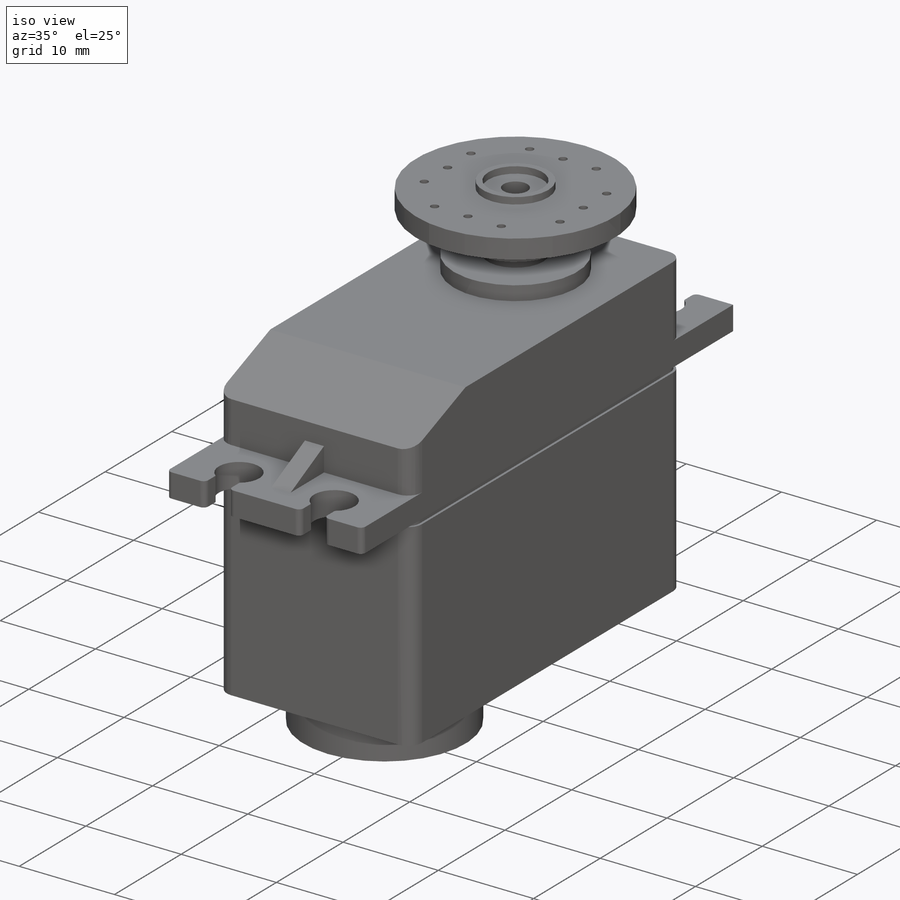
[diagram: iso view]
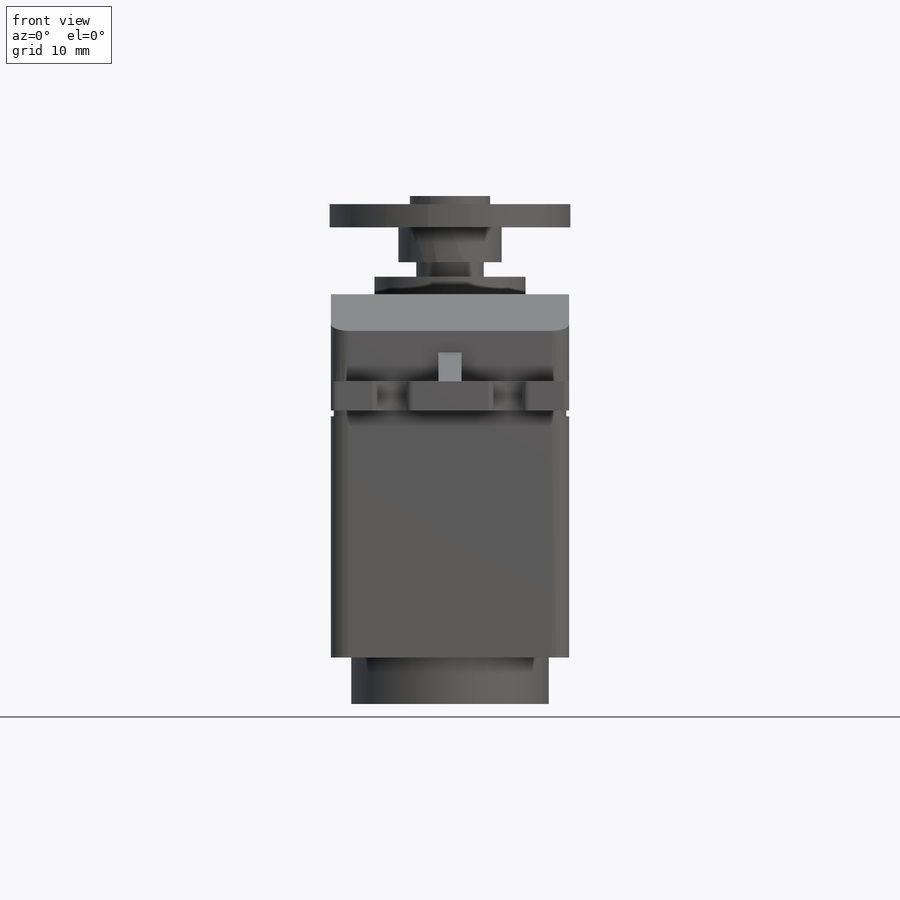
[diagram: front view]
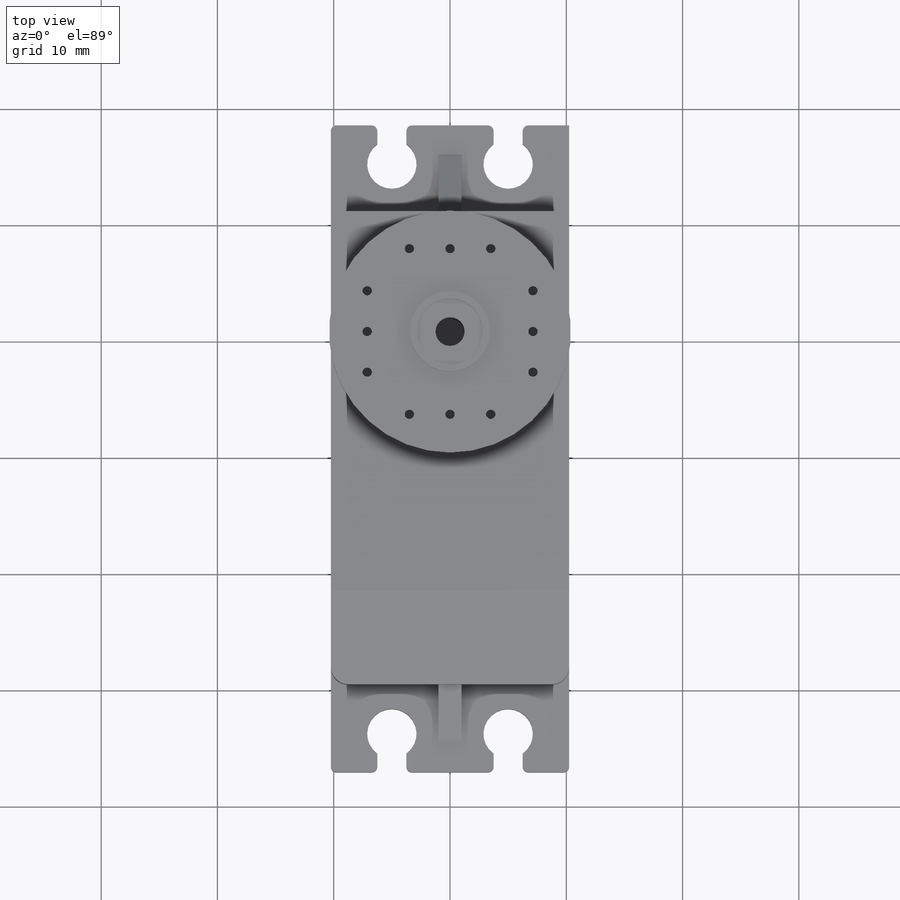
[diagram: top view]
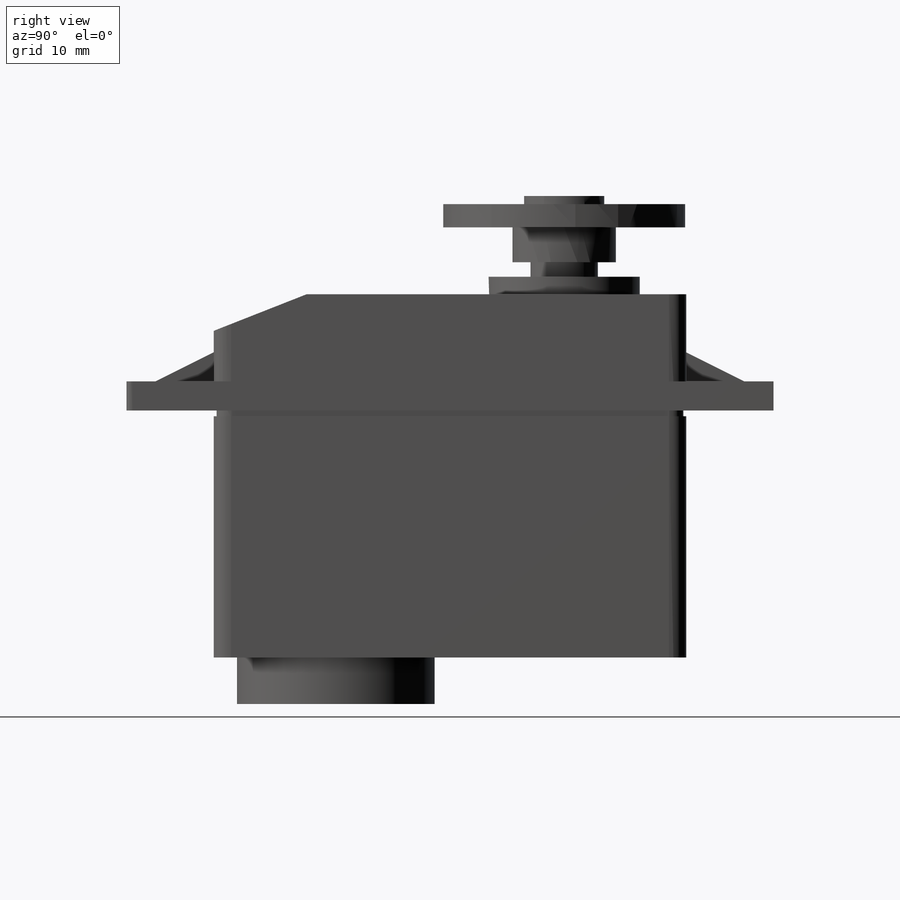
[diagram: right view]
SOLIDWORKS PART (.sldprt)
format: sldprt  version: not decoded by parser v0  size: 509,952 bytes
history: native  units: mm
features: sketch x17, extrude x9, cut_extrude x8, fillet x2, material x1 (+13 scaffold rows collapsed; 1 parser-record rows omitted)
feature tree (51):
  scaffold x13  (default folders/planes/origin — collapsed)
  material  "Material <not specified>"
  sketch  "Sketch1"  dims[D1=20.5mm D2=40.64mm]
  extrude  "Boss-Extrude1"  Depth=39.5mm
  sketch  "Sketch2"  dims[D1=8.0mm D2=3.15mm]
  cut_extrude  "Cut-Extrude1"  [1 undecoded]
  sketch  "Sketch3"  dims[D1=29.5mm D2=2.5mm D3=7.5mm]
  extrude  "Boss-Extrude2"  [1 undecoded]
  sketch  "Sketch4"  dims[D3=4.25mm D1=10.0mm D2=49.0mm]
  cut_extrude  "Cut-Extrude2"  [1 undecoded]
  sketch  "Sketch5"  dims[D1=2.5mm]
  cut_extrude  "Cut-Extrude3"  [1 undecoded]
  sketch  "Sketch6"  dims[D1=5.0mm D2=2.5mm]
  extrude  "Boss-Extrude3"  Depth=2mm
  sketch  "Sketch7"  dims[D1=13.0mm D2=10.5mm]
  extrude  "Boss-Extrude4"  Depth=1.5mm
  sketch  "Sketch8"  dims[D1=5.8mm]
  extrude  "Boss-Extrude5"  Depth=1.25mm
  sketch  "Sketch9"  dims[D1=8.89mm]
  extrude  "Boss-Extrude6"  Depth=5.75mm
  sketch  "Sketch10"  dims[D1=20.8mm]
  extrude  "Boss-Extrude7"  Depth=2mm
  sketch  "Sketch11"  dims[D1=2.5mm]
  cut_extrude  "Cut-Extrude4"  [1 undecoded]
  sketch  "Sketch12"  dims[D1=5.7mm D2=6.9mm]
  extrude  "Boss-Extrude8"  Depth=0.7mm
  sketch  "Sketch13"  dims[D1=0.8mm D2=7.125mm D3=3.5mm D4=4.0]
  cut_extrude  "Cut-Extrude5"  [1 undecoded]
  fillet  "Fillet1"  Radius=1.5mm
  fillet  "Fillet2"  Radius=0.5mm
  sketch  "Sketch14"  dims[D1=0.0mm D2=0.25mm]
  cut_extrude  "Cut-Extrude6"  Depth=0.5mm
  sketch  "Sketch15"  dims[D1=0.0mm D2=0.0mm]
  cut_extrude  "Cut-Extrude7"  Depth=0.5mm
  parser-record x1  (decoder bookkeeping rows leaked as tree rows — omitted from the tree; the rows remain in map.json)
  sketch  "Sketch16"
  cut_extrude  "Cut-Extrude8"  [1 undecoded]
  sketch  "Sketch17"  dims[D1=17.0mm D2=2.0mm]
  extrude  "Boss-Extrude9"  Depth=4mm
decode coverage: 28 of 36 modeling features carry decoded parameters
note: 7 parameter values undecoded
summary: no parameter record found for 7 features
note: suppression state not decoded; provenance and decode notes live in map.json
